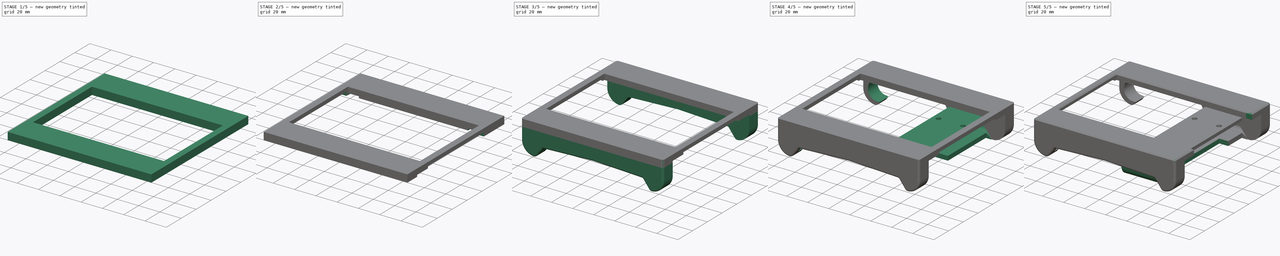
[diagram: build sequence overview — one tinted view per stage of 5, left to right]
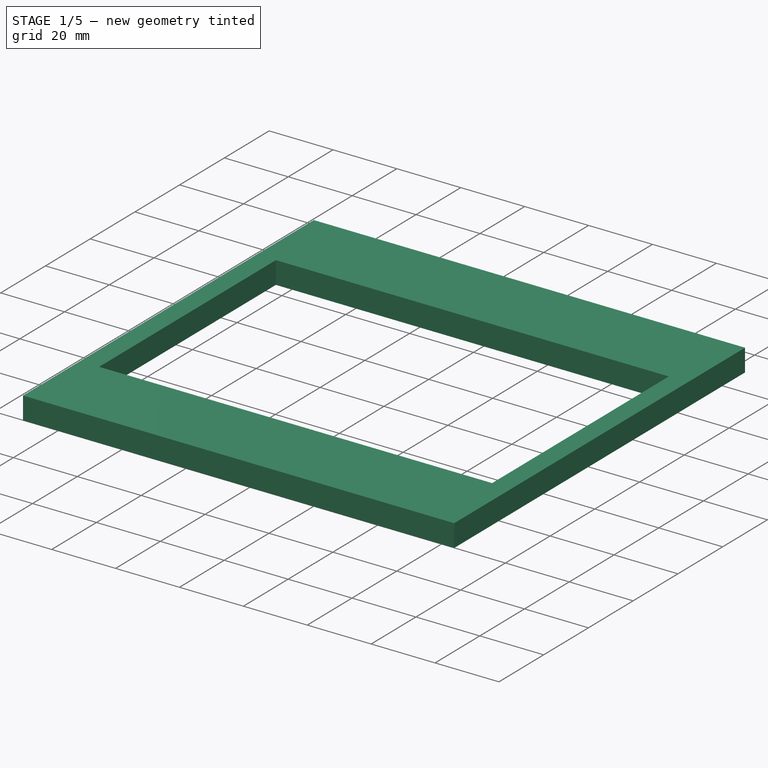
[diagram: stage 1 of 5 — iso view after this stage's code; geometry added in this stage tinted green]
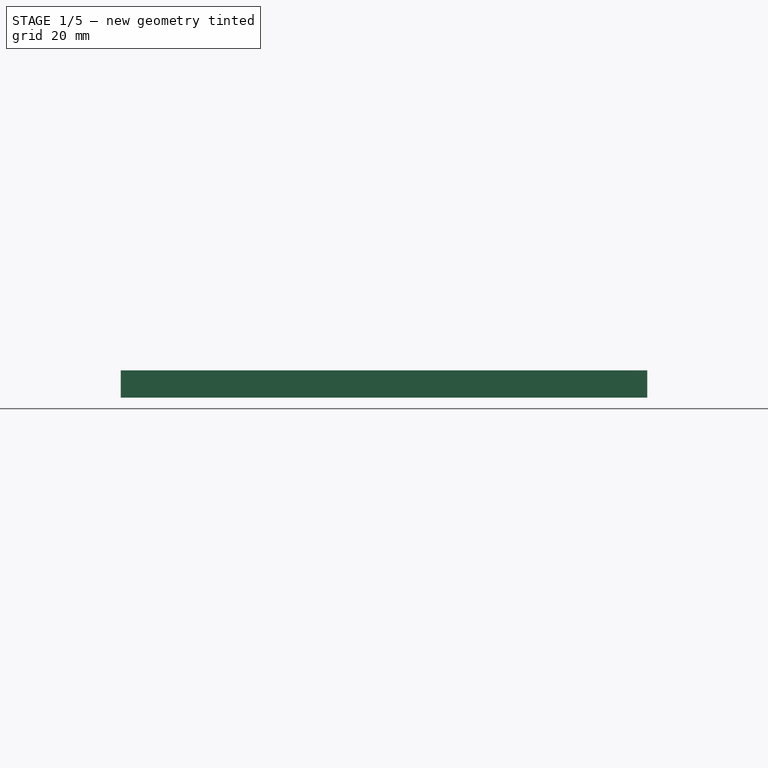
[diagram: stage 1 of 5 — front view after this stage's code; geometry added in this stage tinted green]
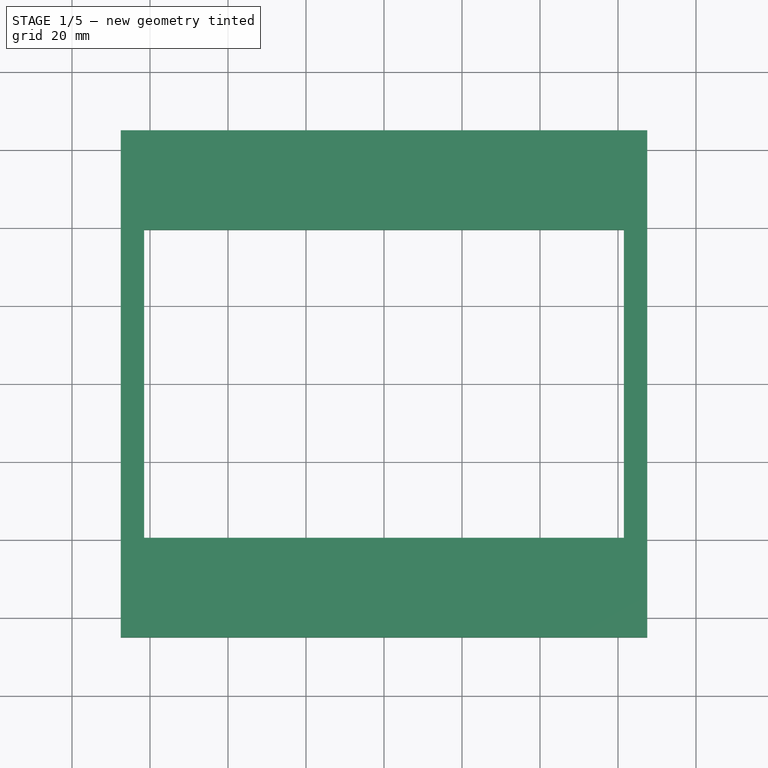
[diagram: stage 1 of 5 — top view after this stage's code; geometry added in this stage tinted green]
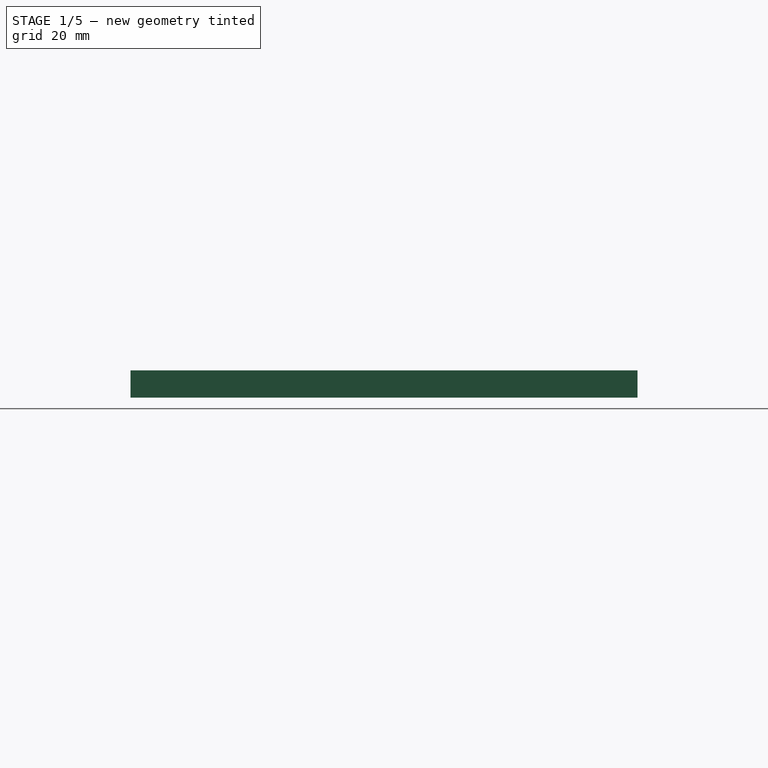
[diagram: stage 1 of 5 — right view after this stage's code; geometry added in this stage tinted green]
FCSTD DOCUMENT  (FreeCAD 0.20R29410 (Git))
Label: Case_front
License: All rights reserved
LicenseURL: http://en.wikipedia.org/wiki/All_rights_reserved
objects: Sketcher::SketchObject×14, PartDesign::Mirrored×10, PartDesign::Pocket×8, PartDesign::Plane×6, PartDesign::Pad×4, PartDesign::MultiTransform×3, Spreadsheet::Sheet×1, PartDesign::Fillet×1, PartDesign::AdditivePipe×1, PartDesign::Chamfer×1, PartDesign::Body×1
note: 64 computed .brp shape members not serialized (recipe doc carries the construction recipe); baked Part::Feature solids carry a one-line shape summary decoded from their .brp

FEATURE [Sketcher::SketchObject] Sketch
  FullyConstrained = true
  MapMode = 5
  Support = -> [XY_Plane]
  sketch-geometry (10):
    g0: LineSegment StartX=-60.5 StartY=-48 StartZ=0 EndX=-60.5 EndY=48 EndZ=0
    g1: LineSegment StartX=-60.5 StartY=48 StartZ=0 EndX=60.5 EndY=48 EndZ=0
    g2: LineSegment StartX=60.5 StartY=48 StartZ=0 EndX=60.5 EndY=-48 EndZ=0
    g3: LineSegment StartX=60.5 StartY=-48 StartZ=0 EndX=-60.5 EndY=-48 EndZ=0
    g4: GeomPoint X=-2e-16 Y=0 Z=0
    g5: LineSegment StartX=-67.5 StartY=-65 StartZ=0 EndX=-67.5 EndY=65 EndZ=0
    g6: LineSegment StartX=-67.5 StartY=65 StartZ=0 EndX=67.5 EndY=65 EndZ=0
    g7: LineSegment StartX=67.5 StartY=65 StartZ=0 EndX=67.5 EndY=-65 EndZ=0
    g8: LineSegment StartX=67.5 StartY=-65 StartZ=0 EndX=-67.5 EndY=-65 EndZ=0
    g9: GeomPoint X=-2e-16 Y=0 Z=0
  constraints (24):
    c: Coincident(g0,g1)
    c: Coincident(g1,g2)
    c: Coincident(g2,g3)
    c: Coincident(g3,g0)
    c: Horizontal(g1)
    c: Horizontal(g3)
    c: Vertical(g0)
    c: Vertical(g2)
    c: Symmetric(g1,g0,g4)
    c: Coincident(g4,g-1)
    c: Coincident(g5,g6)
    c: Coincident(g6,g7)
    c: Coincident(g7,g8)
    c: Coincident(g8,g5)
    c: Horizontal(g6)
    c: Horizontal(g8)
    c: Vertical(g5)
    c: Vertical(g7)
    c: Symmetric(g6,g5,g9)
    c: Coincident(g9,g4)
    c: DistanceY(g2,g2) = 96
    c: DistanceX(g1,g1) = 121
    c: DistanceY(g7,g7) = 130
    c: DistanceX(g6,g6) = 135
FEATURE [PartDesign::Pad] Pad
  Direction = (0,0,1)
  Length = 7
  Length2 = 10
  Profile = -> Sketch
  ReferenceAxis = -> Sketch [N_Axis]
  Type = 0
FEATURE [Sketcher::SketchObject] Sketch001
  FullyConstrained = true
  MapMode = 5
  Support = -> [XY_Plane]
  sketch-geometry (5):
    g0: LineSegment StartX=-61.5 StartY=-39.5 StartZ=0 EndX=-61.5 EndY=39.5 EndZ=0
    g1: LineSegment StartX=-61.5 StartY=39.5 StartZ=0 EndX=61.5 EndY=39.5 EndZ=0
    g2: LineSegment StartX=61.5 StartY=39.5 StartZ=0 EndX=61.5 EndY=-39.5 EndZ=0
    g3: LineSegment StartX=61.5 StartY=-39.5 StartZ=0 EndX=-61.5 EndY=-39.5 EndZ=0
    g4: GeomPoint X=0 Y=0 Z=0
  constraints (12):
    c: Coincident(g0,g1)
    c: Coincident(g1,g2)
    c: Coincident(g2,g3)
    c: Coincident(g3,g0)
    c: Horizontal(g1)
    c: Horizontal(g3)
    c: Vertical(g0)
    c: Vertical(g2)
    c: Symmetric(g1,g0,g4)
    c: Coincident(g4,g-1)
    c: DistanceY(g2,g2) = 79
    c: DistanceX(g1,g1) = 123
FEATURE [PartDesign::Pocket] Pocket
  BaseFeature = -> Pad
  Direction = (0,0,-1)
  Length = 9
  Length2 = 5
  Profile = -> Sketch001
  ReferenceAxis = -> Sketch001 [N_Axis]
  Reversed = true
  Type = 0
FEATURE [Sketcher::SketchObject] Sketch002
  FullyConstrained = true
  MapMode = 5
  Support = -> [XY_Plane]
  expr: Constraints[2] = <<case_data>>.DIA_TH_HOLE
  sketch-geometry (1):
    g0: Circle CenterX=-56.25 CenterY=44.37 CenterZ=0 NormalX=0 NormalY=0 NormalZ=1 AngleXU=0 Radius=2
  constraints (3):
    c: DistanceX(g0,g-1) = 56.25
    c: DistanceY(g0) = 44.37
    c: Diameter(g0) = 4
FEATURE [Spreadsheet::Sheet] Spreadsheet  label="case_data"
  cells = A2=Diameter Heat-insert; B2(DIA_TH_HOLE)==4mm
FEATURE [PartDesign::Pocket] Pocket001
  BaseFeature = -> Pocket
  Direction = (0,0,-1)
  Length = 5
  Length2 = 5
  Profile = -> Sketch002
  ReferenceAxis = -> Sketch002 [N_Axis]
  Reversed = true
  Type = 0
FEATURE [PartDesign::Mirrored] Mirrored
  MirrorPlane = -> Sketch002 [V_Axis]
FEATURE [PartDesign::Mirrored] Mirrored001
  MirrorPlane = -> XZ_Plane
FEATURE [PartDesign::MultiTransform] MultiTransform
  BaseFeature = -> Pocket001
  Originals = -> [Pocket001]
  Transformations = -> [Mirrored,Mirrored001]
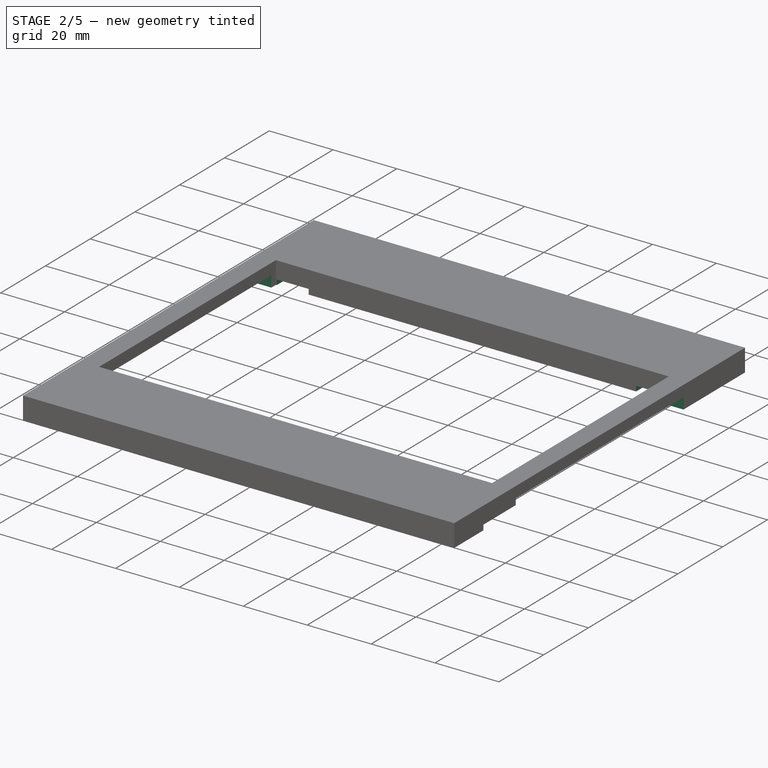
[diagram: stage 2 of 5 — iso view after this stage's code; geometry added in this stage tinted green]
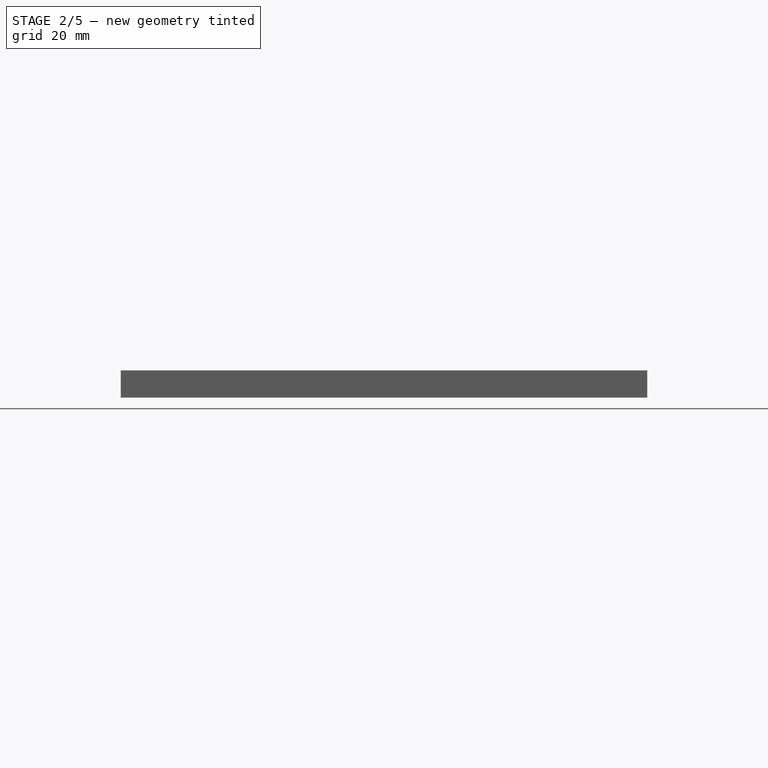
[diagram: stage 2 of 5 — front view after this stage's code; geometry added in this stage tinted green]
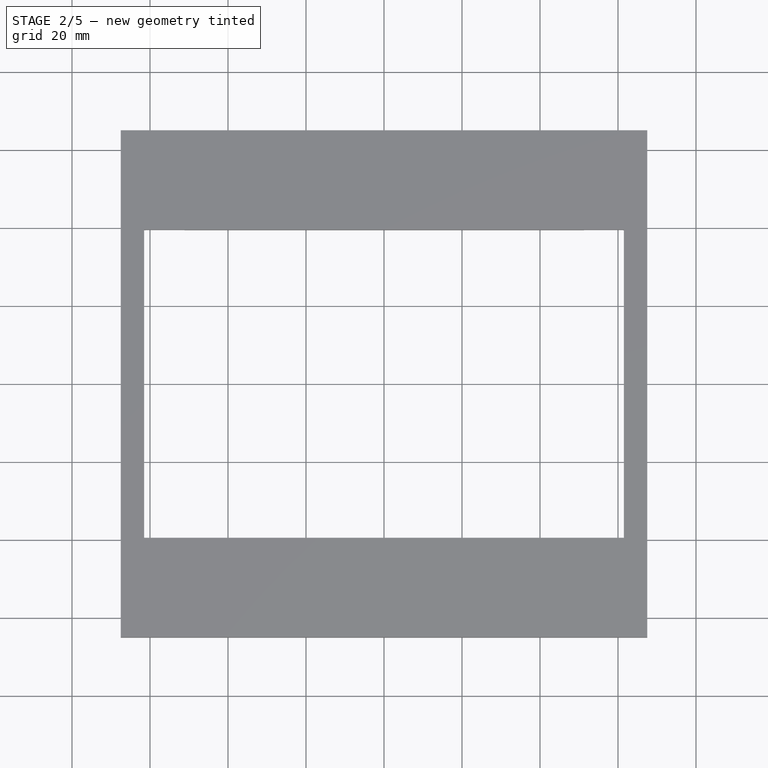
[diagram: stage 2 of 5 — top view after this stage's code; geometry added in this stage tinted green]
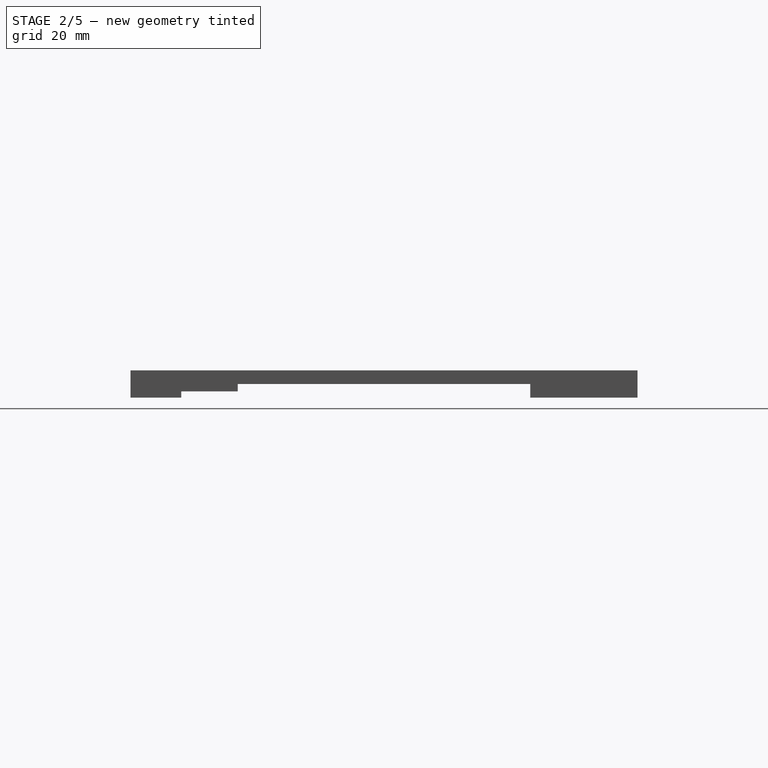
[diagram: stage 2 of 5 — right view after this stage's code; geometry added in this stage tinted green]
FEATURE [Sketcher::SketchObject] Sketch003
  ExternalGeometry = -> [MultiTransform]
  FullyConstrained = false
  MapMode = 5
  Support = -> [XY_Plane]
  sketch-geometry (5):
    g0: LineSegment StartX=-61.25 StartY=35.8414 StartZ=0 EndX=-51.25 EndY=35.8414 EndZ=0
    g1: LineSegment StartX=-51.25 StartY=35.8414 StartZ=0 EndX=-51.25 EndY=52.0821 EndZ=0
    g2: LineSegment StartX=-51.25 StartY=52.0821 StartZ=0 EndX=-61.25 EndY=52.0821 EndZ=0
    g3: LineSegment StartX=-61.25 StartY=52.0821 StartZ=0 EndX=-61.25 EndY=35.8414 EndZ=0
    g4: LineSegment StartX=-56.25 StartY=44.37 StartZ=0 EndX=-56.25 EndY=52.0821 EndZ=0
  constraints (12):
    c: Coincident(g0,g1)
    c: Coincident(g1,g2)
    c: Coincident(g2,g3)
    c: Coincident(g3,g0)
    c: Horizontal(g0)
    c: Horizontal(g2)
    c: Vertical(g1)
    c: Vertical(g3)
    c: DistanceX(g2,g2) = 10
    c: Vertical(g4)
    c: Coincident(g-3,g4)
    c: Symmetric(g1,g2,g4)
FEATURE [PartDesign::Pocket] Pocket002
  BaseFeature = -> MultiTransform
  Direction = (0,0,-1)
  Length = 1.6
  Length2 = 5
  Profile = -> Sketch003
  ReferenceAxis = -> Sketch003 [N_Axis]
  Reversed = true
  Type = 0
FEATURE [PartDesign::Mirrored] Mirrored002
  MirrorPlane = -> Sketch003 [V_Axis]
FEATURE [PartDesign::Mirrored] Mirrored003
  MirrorPlane = -> XZ_Plane
FEATURE [PartDesign::MultiTransform] MultiTransform001
  BaseFeature = -> Pocket002
  Originals = -> [Pocket002]
  Transformations = -> [Mirrored002,Mirrored003]
FEATURE [PartDesign::Plane] DatumPlane
  AttachmentOffset = pos=(0,0,-68) rot=(0,0,1;0rad)
  Length = 146.125
  MapMode = 5
  Placement = pos=(-68,1.51e-14,-1.51e-14) rot=(0.57735,0.57735,0.57735;2.0944rad)
  ResizeMode = 0
  Support = -> [YZ_Plane]
  Width = 66.1245
FEATURE [Sketcher::SketchObject] Sketch004
  FullyConstrained = true
  MapMode = 5
  Placement = pos=(-68,1.51e-14,-1.51e-14) rot=(0.57735,0.57735,0.57735;2.0944rad)
  Support = -> [DatumPlane]
  sketch-geometry (4):
    g0: LineSegment StartX=-37.5 StartY=3.5 StartZ=0 EndX=37.5 EndY=3.5 EndZ=0
    g1: LineSegment StartX=37.5 StartY=3.5 StartZ=0 EndX=37.5 EndY=-3.5 EndZ=0
    g2: LineSegment StartX=37.5 StartY=-3.5 StartZ=0 EndX=-37.5 EndY=-3.5 EndZ=0
    g3: LineSegment StartX=-37.5 StartY=-3.5 StartZ=0 EndX=-37.5 EndY=3.5 EndZ=0
  constraints (10):
    c: Coincident(g0,g1)
    c: Coincident(g1,g2)
    c: Coincident(g2,g3)
    c: Coincident(g3,g0)
    c: Horizontal(g2)
    c: Vertical(g3)
    c: Symmetric(g1,g0,g-1)
    c: DistanceX(g0,g0) = 75
    c: Symmetric(g0,g0,g-2)
    c: DistanceY(g1,g1) = 7
FEATURE [PartDesign::Pocket] Pocket003
  BaseFeature = -> MultiTransform001
  Direction = (-1,1e-16,-1e-16)
  Length = 7
  Length2 = 5
  Profile = -> Sketch004
  ReferenceAxis = -> Sketch004 [N_Axis]
  Reversed = true
  Type = 0
FEATURE [PartDesign::Mirrored] Mirrored004
  BaseFeature = -> Pocket003
  MirrorPlane = -> YZ_Plane
  Originals = -> [Pocket003]
FEATURE [Sketcher::SketchObject] Sketch005
  FullyConstrained = true
  MapMode = 5
  Placement = pos=(0,0,0) rot=(0.57735,0.57735,0.57735;2.0944rad)
  Support = -> [YZ_Plane]
  sketch-geometry (4):
    g0: LineSegment StartX=-52 StartY=0 StartZ=0 EndX=-37.5 EndY=0 EndZ=0
    g1: LineSegment StartX=-37.5 StartY=0 StartZ=0 EndX=-37.5 EndY=1.6 EndZ=0
    g2: LineSegment StartX=-37.5 StartY=1.6 StartZ=0 EndX=-52 EndY=1.6 EndZ=0
    g3: LineSegment StartX=-52 StartY=1.6 StartZ=0 EndX=-52 EndY=0 EndZ=0
  constraints (12):
    c: Coincident(g0,g1)
    c: Coincident(g1,g2)
    c: Coincident(g2,g3)
    c: Coincident(g3,g0)
    c: Horizontal(g0)
    c: Horizontal(g2)
    c: Vertical(g1)
    c: Vertical(g3)
    c: PointOnObject(g0,g-1)
    c: DistanceY(g1,g1) = 1.6
    c: DistanceX(g0,g0) = 14.5
    c: DistanceX(g0) = -52
FEATURE [PartDesign::Pocket] Pocket004
  BaseFeature = -> Mirrored004
  Direction = (-1,2e-16,-3e-16)
  Length = 135
  Length2 = 5
  Midplane = true
  Profile = -> Sketch005
  ReferenceAxis = -> Sketch005 [N_Axis]
  Type = 0
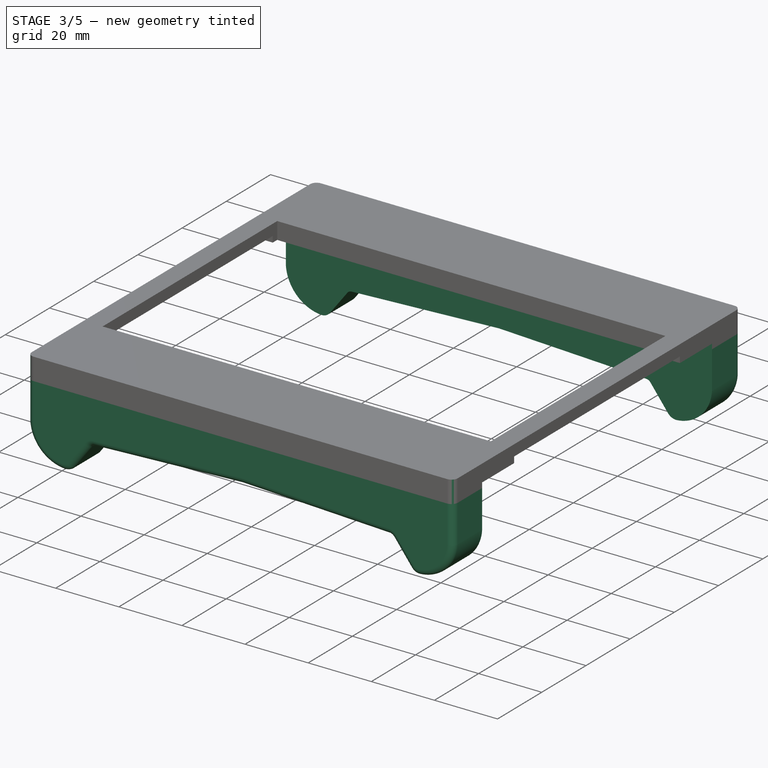
[diagram: stage 3 of 5 — iso view after this stage's code; geometry added in this stage tinted green]
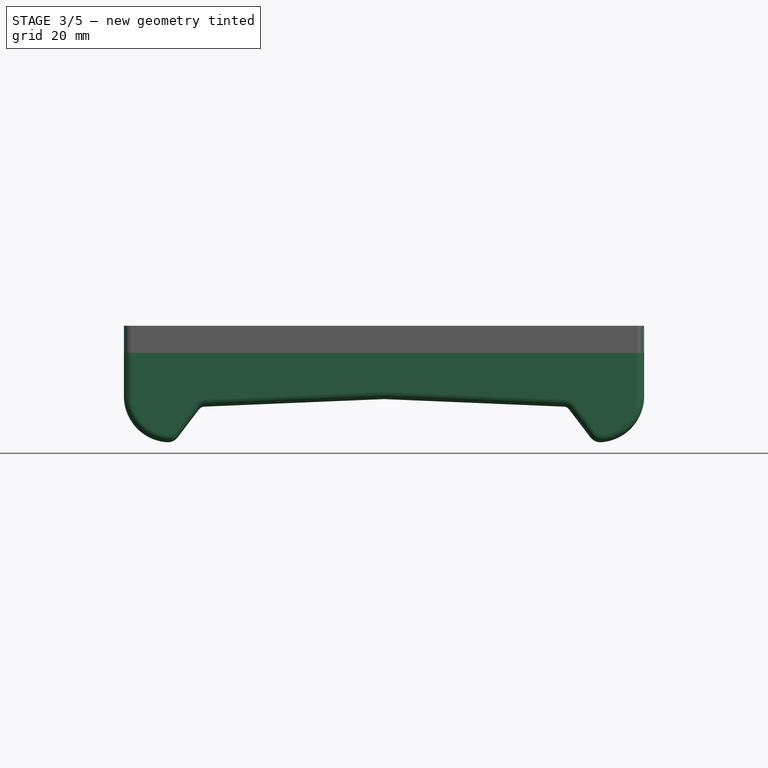
[diagram: stage 3 of 5 — front view after this stage's code; geometry added in this stage tinted green]
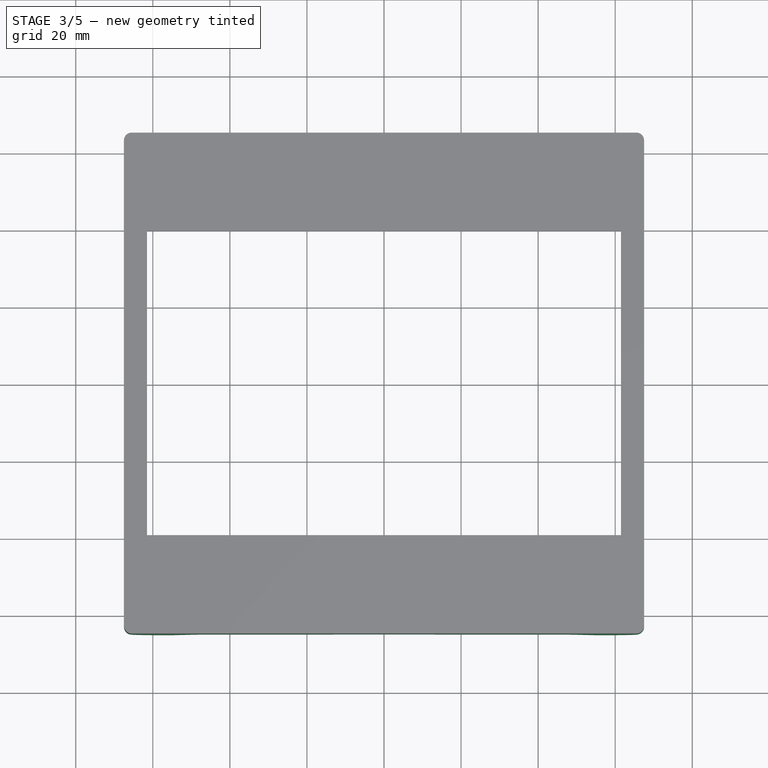
[diagram: stage 3 of 5 — top view after this stage's code; geometry added in this stage tinted green]
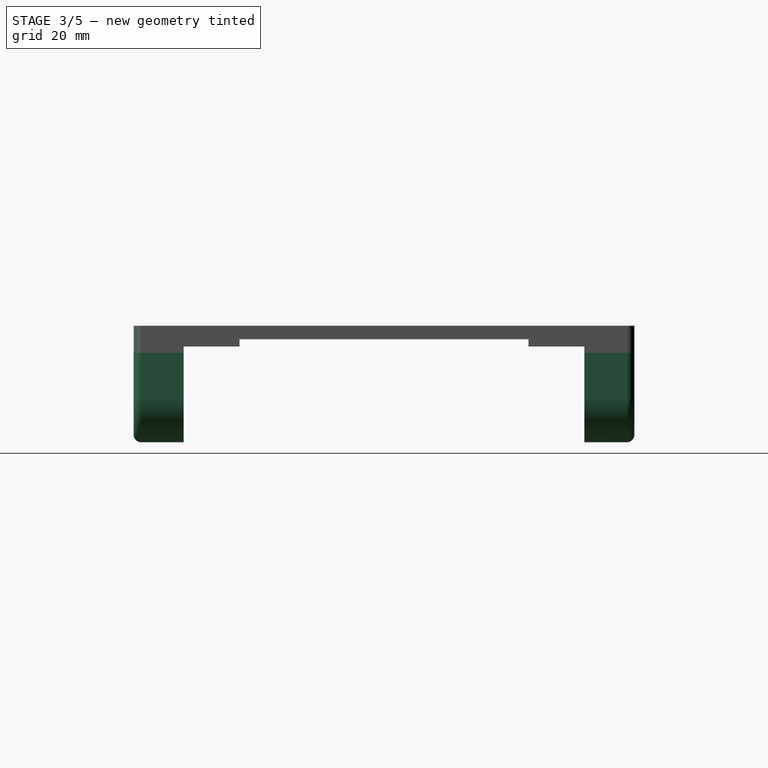
[diagram: stage 3 of 5 — right view after this stage's code; geometry added in this stage tinted green]
FEATURE [PartDesign::Mirrored] Mirrored005
  BaseFeature = -> Pocket004
  MirrorPlane = -> Sketch005 [V_Axis]
  Originals = -> [Pocket004]
FEATURE [PartDesign::Plane] DatumPlane001
  AttachmentOffset = pos=(0,0,52) rot=(0,0,1;0rad)
  Length = 151.432
  MapMode = 5
  Placement = pos=(0,-52,-1.15e-14) rot=(1,0,0;1.5708rad)
  ResizeMode = 0
  Support = -> [XZ_Plane]
  Width = 66.4317
FEATURE [Sketcher::SketchObject] Sketch006
  FullyConstrained = false
  MapMode = 5
  Placement = pos=(0,-52,-1.15e-14) rot=(1,0,0;1.5708rad)
  Support = -> [DatumPlane001]
  sketch-geometry (9):
    g0: LineSegment StartX=-67.5 StartY=0 StartZ=0 EndX=-67.5 EndY=-12 EndZ=0
    g1: LineSegment StartX=-67.5 StartY=0 StartZ=0 EndX=-52.89 EndY=0 EndZ=0
    g2: ArcOfCircle CenterX=-56.1396 CenterY=-19.9995 CenterZ=0 NormalX=0 NormalY=0 NormalZ=1 AngleXU=0 Radius=3.25 StartAngle=4.64177 EndAngle=5.6316
    g3: ArcOfCircle CenterX=-55.5221 CenterY=-11.2713 CenterZ=0 NormalX=0 NormalY=0 NormalZ=1 AngleXU=0 Radius=12 StartAngle=3.20236 EndAngle=4.64177
    g4: LineSegment StartX=-53.5554 StartY=-21.9704 StartZ=0 EndX=-48.0202 EndY=-14.7131 EndZ=0
    g5: LineSegment StartX=-46.6598 StartY=-14.0039 StartZ=0 EndX=0 EndY=-12.0484 EndZ=0
    g6: LineSegment StartX=0 StartY=-12.0484 StartZ=0 EndX=0 EndY=0 EndZ=0
    g7: LineSegment StartX=0 StartY=0 StartZ=0 EndX=-52.89 EndY=0 EndZ=0
    g8: ArcOfCircle CenterX=-46.5841 CenterY=-15.8084 CenterZ=0 NormalX=0 NormalY=0 NormalZ=1 AngleXU=0 Radius=1.80605 StartAngle=1.61268 EndAngle=2.49001
  constraints (19):
    c: PointOnObject(g0,g-1)
    c: Vertical(g0)
    c: PointOnObject(g1,g-1)
    c: Coincident(g1,g0)
    c: DistanceX(g1) = -52.89
    c: Tangent(g2,g3) = -1.5708
    c: Coincident(g3,g0)
    c: DistanceX(g1,g1) = 14.61
    c: DistanceY(g0,g0) = 12
    c: Diameter(g2) = 6.5
    c: Diameter(g3) = 24
    c: PointOnObject(g5,g-2)
    c: Coincident(g5,g6)
    c: Coincident(g6,g-1)
    c: Coincident(g6,g7)
    c: Coincident(g7,g1)
    c: Tangent(g2,g4) = -1.5708
    c: Tangent(g4,g8) = 1.5708
    c: Tangent(g5,g8) = 1.5708
FEATURE [PartDesign::Pad] Pad001
  BaseFeature = -> Mirrored005
  Direction = (0,-1,-2e-16)
  Length = 13
  Length2 = 10
  Profile = -> Sketch006
  ReferenceAxis = -> Sketch006 [N_Axis]
  Type = 0
FEATURE [PartDesign::Fillet] Fillet
  Base = -> Pad001 [Edge72,Edge68,Edge71,Edge70,Edge59,Edge15]
  BaseFeature = -> Pad001
  Radius = 2
  SupportTransform = false
  UseAllEdges = false
FEATURE [PartDesign::Mirrored] Mirrored006
  MirrorPlane = -> Sketch006 [V_Axis]
FEATURE [PartDesign::Mirrored] Mirrored007
  MirrorPlane = -> XZ_Plane
FEATURE [PartDesign::MultiTransform] MultiTransform002
  BaseFeature = -> Fillet
  Originals = -> [Pad001,Fillet]
  Transformations = -> [Mirrored006,Mirrored007]
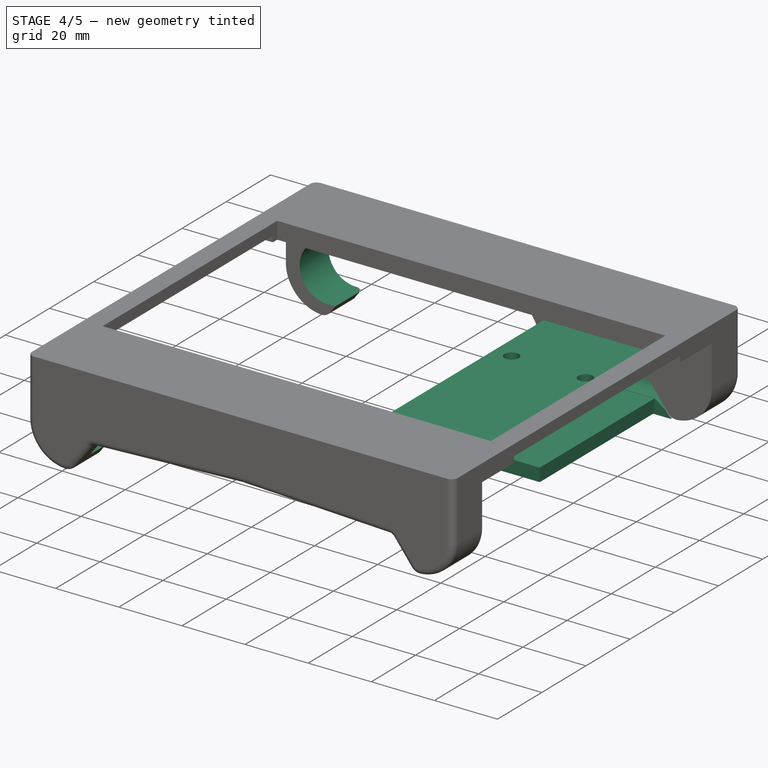
[diagram: stage 4 of 5 — iso view after this stage's code; geometry added in this stage tinted green]
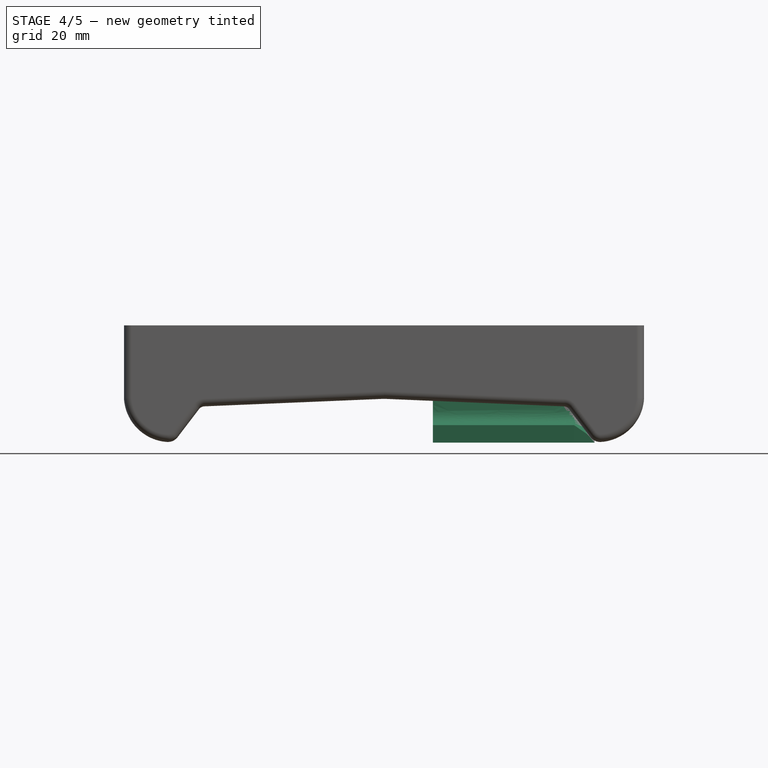
[diagram: stage 4 of 5 — front view after this stage's code; geometry added in this stage tinted green]
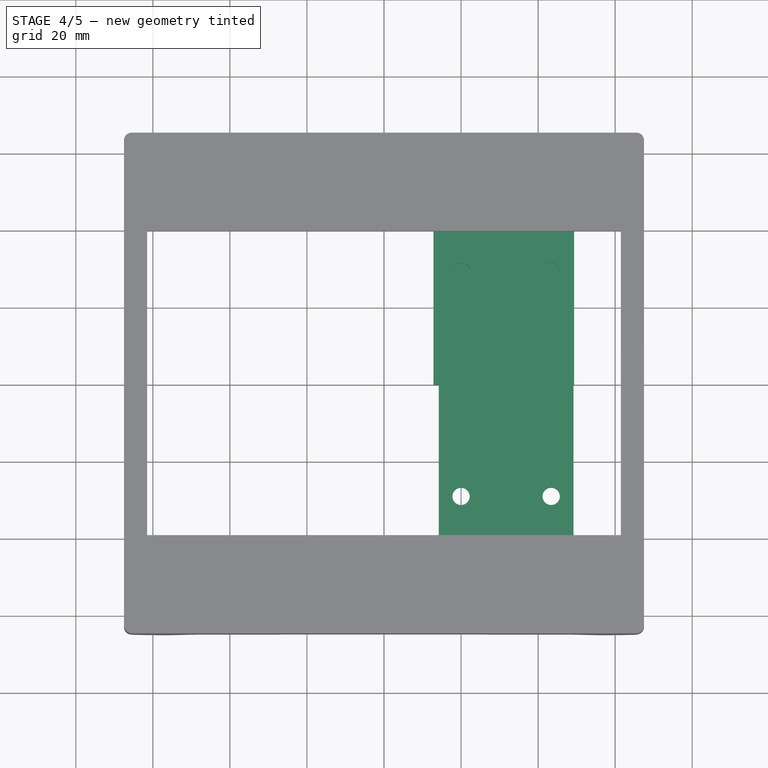
[diagram: stage 4 of 5 — top view after this stage's code; geometry added in this stage tinted green]
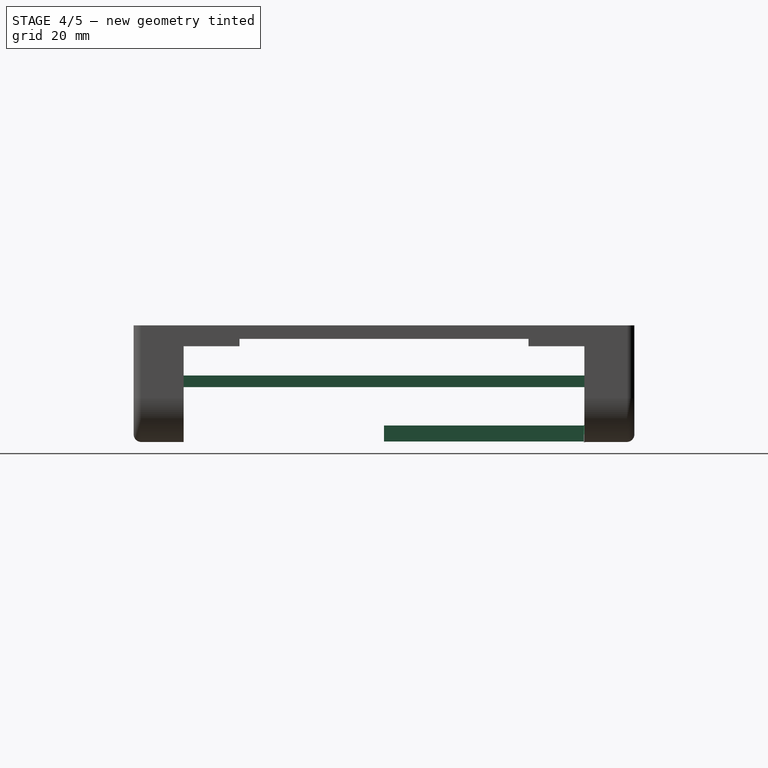
[diagram: stage 4 of 5 — right view after this stage's code; geometry added in this stage tinted green]
FEATURE [PartDesign::Plane] DatumPlane002
  AttachmentOffset = pos=(0,0,-6) rot=(0,0,1;0rad)
  Length = 161.495
  MapMode = 5
  Placement = pos=(0,0,-6) rot=(0,0,1;0rad)
  ResizeMode = 0
  Support = -> [XY_Plane]
  Width = 156.495
FEATURE [Sketcher::SketchObject] Sketch007
  FullyConstrained = true
  MapMode = 5
  Placement = pos=(0,0,-6) rot=(0,0,1;0rad)
  Support = -> [DatumPlane002]
  sketch-geometry (7):
    g0: LineSegment StartX=14.2 StartY=0 StartZ=0 EndX=49.2 EndY=0 EndZ=0
    g1: LineSegment StartX=49.2 StartY=0 StartZ=0 EndX=49.2 EndY=-55 EndZ=0
    g2: LineSegment StartX=49.2 StartY=-55 StartZ=0 EndX=14.2 EndY=-55 EndZ=0
    g3: LineSegment StartX=14.2 StartY=-55 StartZ=0 EndX=14.2 EndY=0 EndZ=0
    g4: Circle CenterX=20 CenterY=-29.2 CenterZ=0 NormalX=0 NormalY=0 NormalZ=1 AngleXU=0 Radius=2.25
    g5: Circle CenterX=43.4 CenterY=-29.2 CenterZ=0 NormalX=0 NormalY=0 NormalZ=1 AngleXU=0 Radius=2.25
    g6: LineSegment StartX=31.7 StartY=-55 StartZ=0 EndX=31.7 EndY=0 EndZ=0
  constraints (20):
    c: Coincident(g0,g1)
    c: Coincident(g1,g2)
    c: Coincident(g2,g3)
    c: Coincident(g3,g0)
    c: Horizontal(g0)
    c: Horizontal(g2)
    c: Vertical(g1)
    c: Vertical(g3)
    c: PointOnObject(g0,g-1)
    c: Equal(g5,g4)
    c: Diameter(g5) = 4.5
    c: DistanceX(g4,g5) = 23.4
    c: DistanceY(g4) = -29.2
    c: DistanceX(g4) = 20
    c: DistanceX(g0,g0) = 35
    c: DistanceY(g3,g3) = 55
    c: PointOnObject(g6,g2)
    c: PointOnObject(g6,g0)
    c: Symmetric(g4,g5,g6)
    c: Symmetric(g0,g0,g6)
FEATURE [PartDesign::Pad] Pad002
  BaseFeature = -> MultiTransform002
  Direction = (0,0,1)
  Length = 3
  Length2 = 10
  Profile = -> Sketch007
  ReferenceAxis = -> Sketch007 [N_Axis]
  Reversed = true
  Type = 0
FEATURE [PartDesign::Mirrored] Mirrored008
  BaseFeature = -> Pad002
  MirrorPlane = -> XZ_Plane
  Originals = -> [Pad002]
FEATURE [Sketcher::SketchObject] Sketch008
  FullyConstrained = false
  MapMode = 5
  Placement = pos=(0,0,0) rot=(1,0,0;1.5708rad)
  Support = -> [XZ_Plane]
  sketch-geometry (4):
    g0: ArcOfCircle CenterX=-54.3989 CenterY=-10.9827 CenterZ=0 NormalX=0 NormalY=0 NormalZ=1 AngleXU=0 Radius=8.75 StartAngle=1.5708 EndAngle=4.71239
    g1: ArcOfCircle CenterX=3.60114 CenterY=-10.9827 CenterZ=0 NormalX=0 NormalY=0 NormalZ=1 AngleXU=0 Radius=8.75 StartAngle=4.71239 EndAngle=7.85398
    g2: LineSegment StartX=-54.3989 StartY=-19.7327 StartZ=0 EndX=3.60114 EndY=-19.7327 EndZ=0
    g3: LineSegment StartX=3.60114 StartY=-2.23272 StartZ=0 EndX=-54.3989 EndY=-2.23272 EndZ=0
  constraints (8):
    c: Tangent(g0,g2) = -1.5708
    c: Tangent(g2,g1) = -1.5708
    c: Tangent(g1,g3) = -1.5708
    c: Tangent(g3,g0) = -1.5708
    c: Equal(g0,g1)
    c: Horizontal(g2)
    c: Distance(g0,g1) = 58
    c: Diameter(g0) = 17.5
FEATURE [PartDesign::Pocket] Pocket005
  BaseFeature = -> Mirrored008
  Direction = (0,1,2e-16)
  Length = 66
  Length2 = 59
  Profile = -> Sketch008
  ReferenceAxis = -> Sketch008 [N_Axis]
  Type = 4
FEATURE [PartDesign::Plane] DatumPlane003
  AttachmentOffset = pos=(0,0,-52) rot=(0,0,1;0rad)
  Length = 151.432
  MapMode = 5
  Placement = pos=(0,52,1.15e-14) rot=(1,0,0;1.5708rad)
  ResizeMode = 0
  Support = -> [XZ_Plane]
  Width = 66.4317
FEATURE [Sketcher::SketchObject] Sketch009
  FullyConstrained = false
  MapMode = 5
  Placement = pos=(0,52,1.15e-14) rot=(1,0,0;1.5708rad)
  Support = -> [DatumPlane003]
  sketch-geometry (5):
    g0: LineSegment StartX=12.6963 StartY=-18.8351 StartZ=0 EndX=49.3399 EndY=-18.8351 EndZ=0
    g1: LineSegment StartX=49.3399 StartY=-18.8351 StartZ=0 EndX=52.888 EndY=-21.2821 EndZ=0
    g2: LineSegment StartX=52.888 StartY=-21.2821 StartZ=0 EndX=54.6621 EndY=-23.3621 EndZ=0
    g3: LineSegment StartX=54.6621 StartY=-23.3621 StartZ=0 EndX=12.6963 EndY=-23.3621 EndZ=0
    g4: LineSegment StartX=12.6963 StartY=-23.3621 StartZ=0 EndX=12.6963 EndY=-18.8351 EndZ=0
  constraints (8):
    c: Coincident(g0,g1)
    c: Coincident(g1,g2)
    c: Coincident(g2,g3)
    c: Horizontal(g3)
    c: Coincident(g3,g4)
    c: Coincident(g4,g0)
    c: Vertical(g4)
    c: Horizontal(g0)
FEATURE [PartDesign::Plane] DatumPlane004
  AttachmentOffset = pos=(0,0,-12) rot=(0,1,0;0.034907rad)
  Length = 163.321
  MapMode = 5
  Placement = pos=(0,0,-12) rot=(0,1,0;0.034907rad)
  ResizeMode = 0
  Support = -> [XY_Plane]
  Width = 156.658
FEATURE [PartDesign::Plane] DatumPlane005
  AttachmentOffset = pos=(0,0,36) rot=(0,0,1;0rad)
  Length = 146.125
  MapMode = 5
  Placement = pos=(36,-8e-15,8e-15) rot=(0.57735,0.57735,0.57735;2.0944rad)
  ResizeMode = 0
  Support = -> [YZ_Plane]
  Width = 66.1245
FEATURE [Sketcher::SketchObject] Sketch012
  FullyConstrained = false
  MapMode = 5
  Placement = pos=(36,-8e-15,8e-15) rot=(0.57735,0.57735,0.57735;2.0944rad)
  Support = -> [DatumPlane005]
  sketch-geometry (7):
    g0-g3: Circle x4 (B-spline internal-alignment scaffolding for g4; pole/knot coordinates omitted)
    g4: BSplineCurve PolesCount=4 KnotsCount=2 Degree=3 IsPeriodic=0
    g5: GeomPoint X=57.7924 Y=-12.533 Z=0
    g6: GeomPoint X=51.8584 Y=-21.1586 Z=0
  constraints (7):
    c: Weight(g0) = 1
    c: Equal(g0,g1)
    c: Equal(g0,g2)
    c: Equal(g0,g3)
    c: InternalAlignment(g0-g3 -> g4) x4
    c: InternalAlignment(g5,g4)
    c: InternalAlignment(g6,g4)
FEATURE [PartDesign::AdditivePipe] AdditivePipe
  AuxilleryCurvelinear = true
  AuxillerySpineTangent = false
  BaseFeature = -> Pocket005
  Binormal = (0,0,0)
  Mode = 0
  Profile = -> Sketch009
  Spine = -> Sketch012
  SpineTangent = false
  Transformation = 0
  Transition = 0
FEATURE [Sketcher::SketchObject] Sketch013
  FullyConstrained = false
  MapMode = 5
  Placement = pos=(0,52,1.15e-14) rot=(1,0,0;1.5708rad)
  Support = -> [DatumPlane003]
  sketch-geometry (4):
    g0: LineSegment StartX=12.8431 StartY=-18.9588 StartZ=0 EndX=49.3555 EndY=-18.9588 EndZ=0
    g1: LineSegment StartX=49.3555 StartY=-18.9588 StartZ=0 EndX=49.3555 EndY=-23.1159 EndZ=0
    g2: LineSegment StartX=49.3555 StartY=-23.1159 StartZ=0 EndX=12.8431 EndY=-23.1159 EndZ=0
    g3: LineSegment StartX=12.8431 StartY=-23.1159 StartZ=0 EndX=12.8431 EndY=-18.9588 EndZ=0
  constraints (8):
    c: Coincident(g0,g1)
    c: Coincident(g1,g2)
    c: Coincident(g2,g3)
    c: Coincident(g3,g0)
    c: Horizontal(g0)
    c: Horizontal(g2)
    c: Vertical(g1)
    c: Vertical(g3)
FEATURE [PartDesign::Pad] Pad003
  BaseFeature = -> AdditivePipe
  Direction = (0,-1,-2e-16)
  Length = 52
  Length2 = 10
  Profile = -> Sketch013
  ReferenceAxis = -> Sketch013 [N_Axis]
  Type = 0
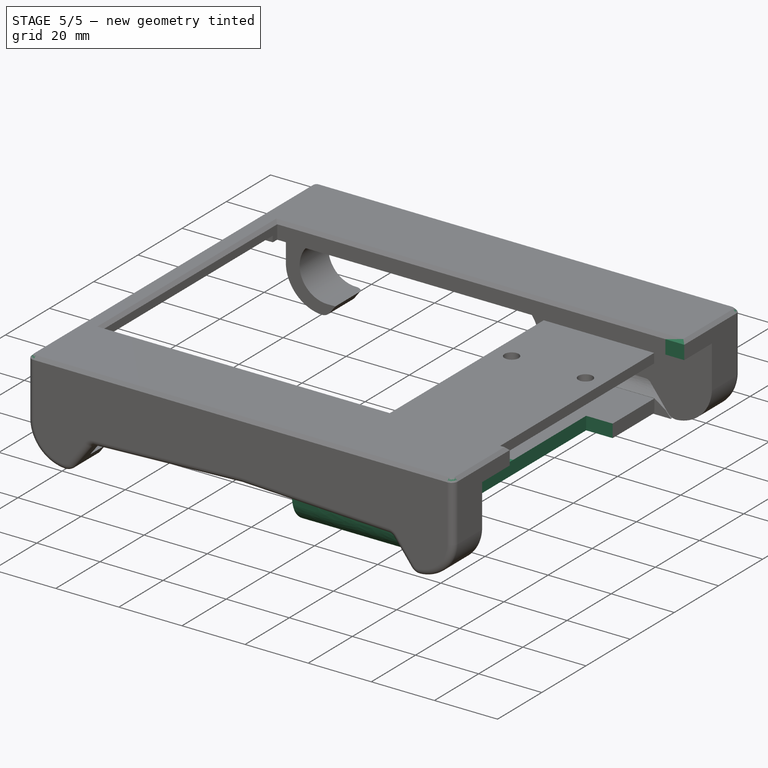
[diagram: stage 5 of 5 — iso view after this stage's code; geometry added in this stage tinted green]
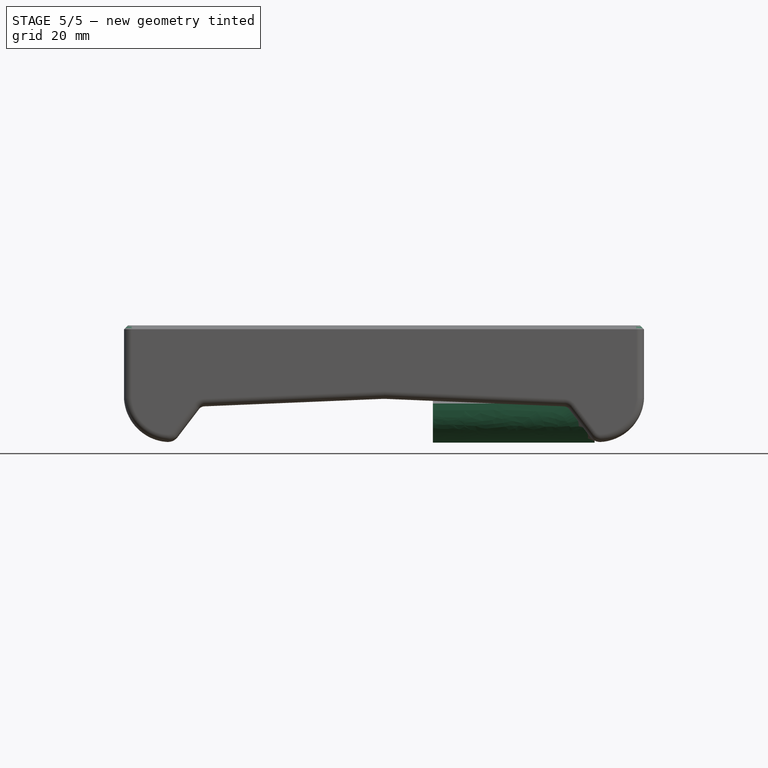
[diagram: stage 5 of 5 — front view after this stage's code; geometry added in this stage tinted green]
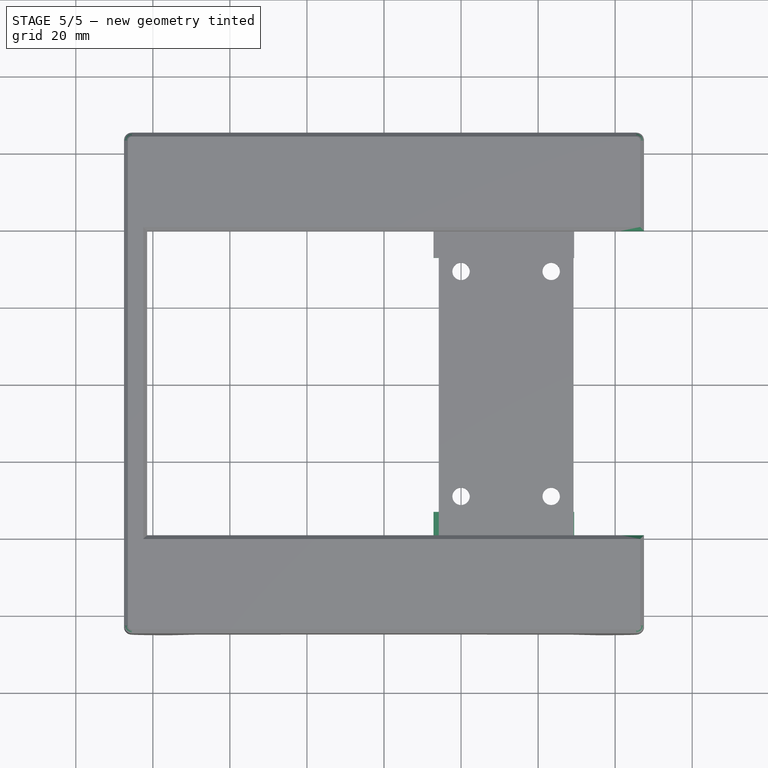
[diagram: stage 5 of 5 — top view after this stage's code; geometry added in this stage tinted green]
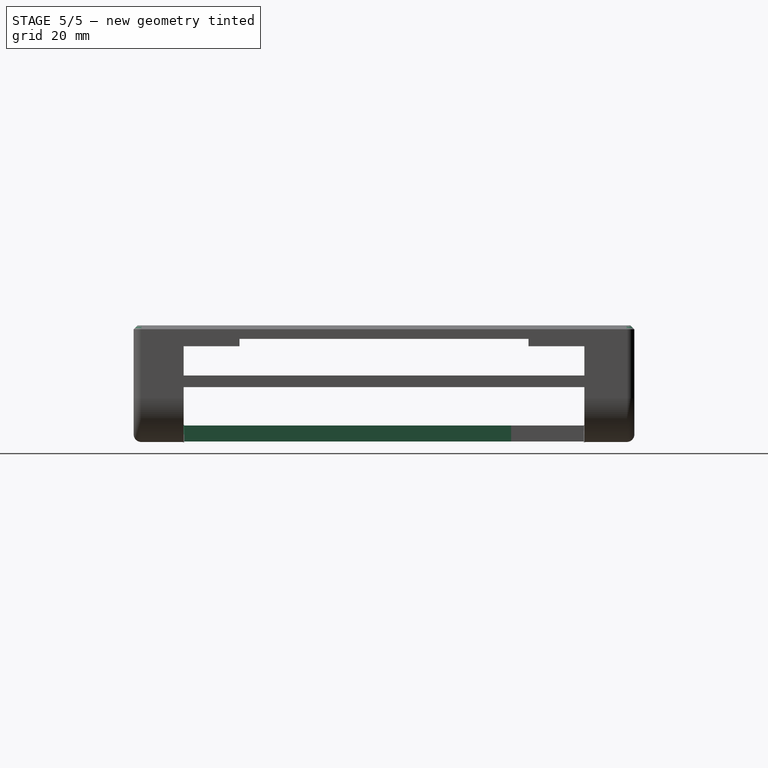
[diagram: stage 5 of 5 — right view after this stage's code; geometry added in this stage tinted green]
FEATURE [PartDesign::Mirrored] Mirrored009
  BaseFeature = -> Pad003
  MirrorPlane = -> XZ_Plane
  Originals = -> [AdditivePipe,Pad003]
FEATURE [Sketcher::SketchObject] Sketch014
  FullyConstrained = false
  MapMode = 5
  Placement = pos=(0,0,0) rot=(1,0,0;1.5708rad)
  Support = -> [XZ_Plane]
  sketch-geometry (8):
    g0: LineSegment StartX=12.5694 StartY=-14.5797 StartZ=0 EndX=23.0895 EndY=-14.5797 EndZ=0
    g1: LineSegment StartX=23.0895 StartY=-14.5797 StartZ=0 EndX=23.0895 EndY=-23.2611 EndZ=0
    g2: LineSegment StartX=23.0895 StartY=-23.2611 StartZ=0 EndX=12.5694 EndY=-23.2611 EndZ=0
    g3: LineSegment StartX=12.5694 StartY=-23.2611 StartZ=0 EndX=12.5694 EndY=-14.5797 EndZ=0
    g4: LineSegment StartX=40.9605 StartY=-14.5797 StartZ=0 EndX=51.4806 EndY=-14.5797 EndZ=0
    g5: LineSegment StartX=51.4806 StartY=-14.5797 StartZ=0 EndX=51.4806 EndY=-23.2611 EndZ=0
    g6: LineSegment StartX=51.4806 StartY=-23.2611 StartZ=0 EndX=40.9605 EndY=-23.2611 EndZ=0
    g7: LineSegment StartX=40.9605 StartY=-23.2611 StartZ=0 EndX=40.9605 EndY=-14.5797 EndZ=0
  constraints (19):
    c: Coincident(g0,g1)
    c: Coincident(g1,g2)
    c: Coincident(g2,g3)
    c: Coincident(g3,g0)
    c: Horizontal(g0)
    c: Horizontal(g2)
    c: Vertical(g1)
    c: Vertical(g3)
    c: Coincident(g4,g5)
    c: Coincident(g5,g6)
    c: Coincident(g6,g7)
    c: Coincident(g7,g4)
    c: Horizontal(g4)
    c: Horizontal(g6)
    c: Vertical(g5)
    c: Vertical(g7)
    c: Horizontal(g0,g4)
    c: Equal(g0,g4)
    c: Equal(g1,g7)
FEATURE [PartDesign::Pocket] Pocket006
  BaseFeature = -> Mirrored009
  Direction = (0,1,2e-16)
  Length = 66
  Length2 = 5
  Midplane = true
  Profile = -> Sketch014
  ReferenceAxis = -> Sketch014 [N_Axis]
  Type = 0
FEATURE [Sketcher::SketchObject] Sketch015
  FullyConstrained = false
  MapMode = 5
  Support = -> [XY_Plane]
  sketch-geometry (4):
    g0: LineSegment StartX=60.0684 StartY=39.5 StartZ=0 EndX=71.9761 EndY=39.5 EndZ=0
    g1: LineSegment StartX=71.9761 StartY=39.5 StartZ=0 EndX=71.9761 EndY=-39.5 EndZ=0
    g2: LineSegment StartX=71.9761 StartY=-39.5 StartZ=0 EndX=60.0684 EndY=-39.5 EndZ=0
    g3: LineSegment StartX=60.0684 StartY=-39.5 StartZ=0 EndX=60.0684 EndY=39.5 EndZ=0
  constraints (9):
    c: Coincident(g0,g1)
    c: Coincident(g1,g2)
    c: Coincident(g2,g3)
    c: Coincident(g3,g0)
    c: Horizontal(g0)
    c: Horizontal(g2)
    c: Vertical(g3)
    c: Symmetric(g0,g1,g-1)
    c: DistanceY(g1,g1) = 79
FEATURE [PartDesign::Pocket] Pocket007
  BaseFeature = -> Pocket006
  Direction = (0,0,-1)
  Length = 7
  Length2 = 5
  Profile = -> Sketch015
  ReferenceAxis = -> Sketch015 [N_Axis]
  Reversed = true
  Type = 0
FEATURE [PartDesign::Chamfer] Chamfer
  Angle = 45
  Base = -> Pocket007 [Face143]
  BaseFeature = -> Pocket007
  ChamferType = 0
  FlipDirection = false
  Size = 1
  Size2 = 1
  SupportTransform = false
  UseAllEdges = false
FEATURE [PartDesign::Body] Body
  Group = -> [Sketch,Pad,Sketch001,Pocket,Sketch002,Pocket001,MultiTransform,Mirrored,Mirrored001,Sketch003,Pocket002,MultiTransform001,Mirrored002,Mirrored003,DatumPlane,Sketch004,Pocket003,Mirrored004,Sketch005,Pocket004,Mirrored005,DatumPlane001,Sketch006,Pad001,Fillet,MultiTransform002,Mirrored006,Mirrored007,DatumPlane002,Sketch007,Pad002,Mirrored008,Sketch008,Pocket005,DatumPlane003,Sketch009,+12 more]
  Origin = -> Origin
  Tip = -> Chamfer
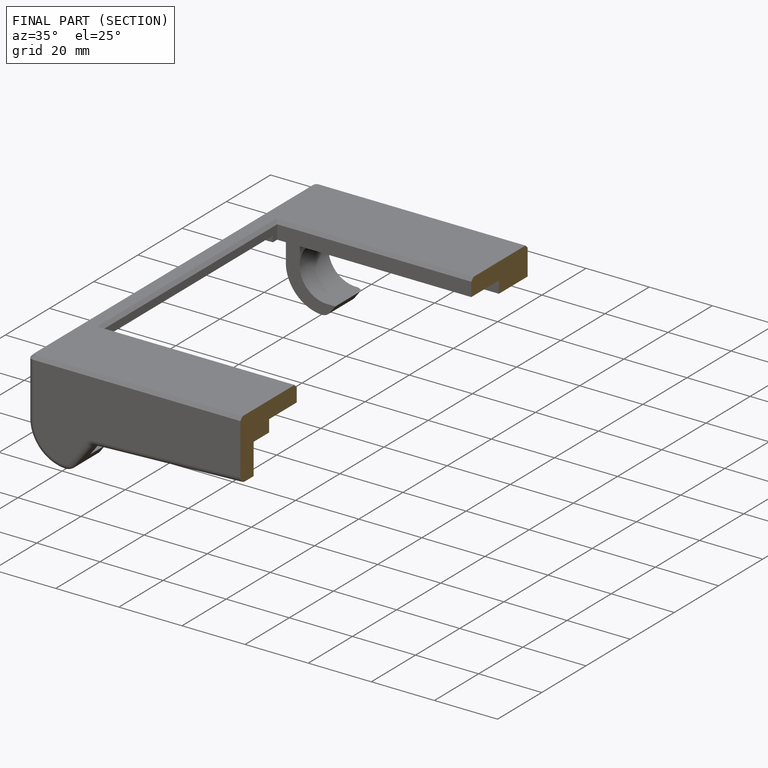
[diagram: finished part — half-section view (interior)]
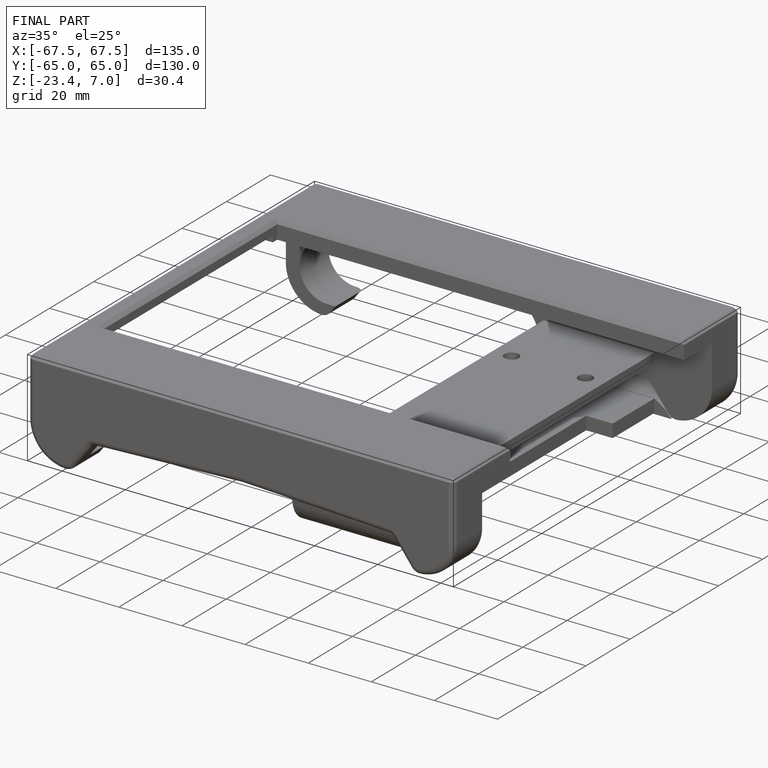
[diagram: finished part — iso view with bounding-box wireframe]
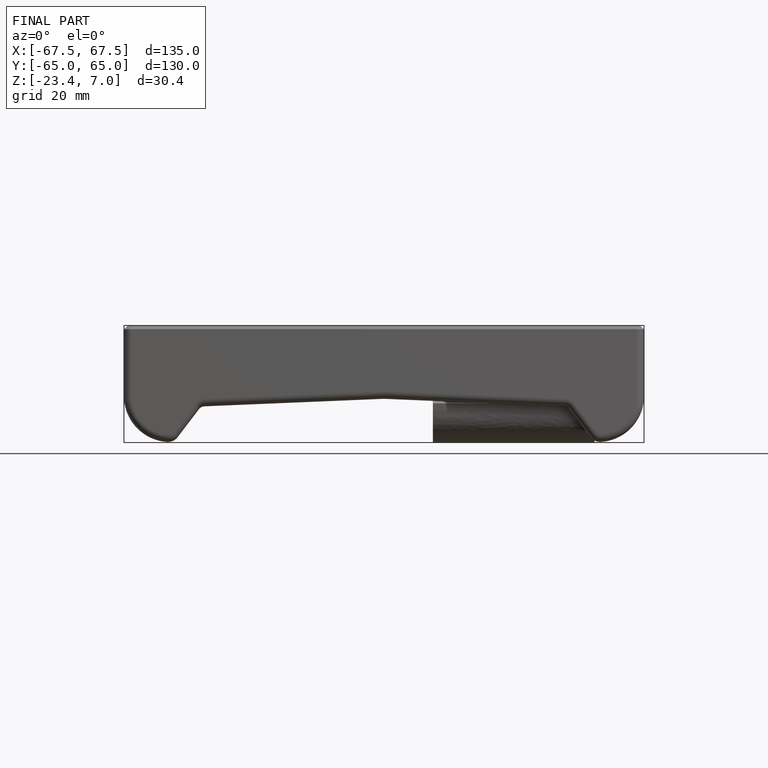
[diagram: finished part — front view with bounding-box wireframe]
